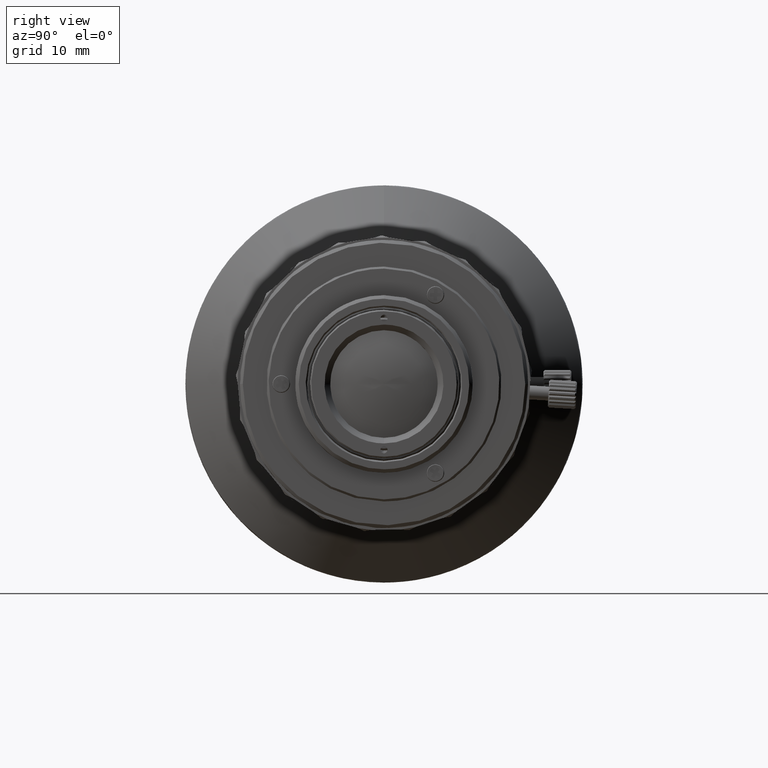
[diagram: clean part render]
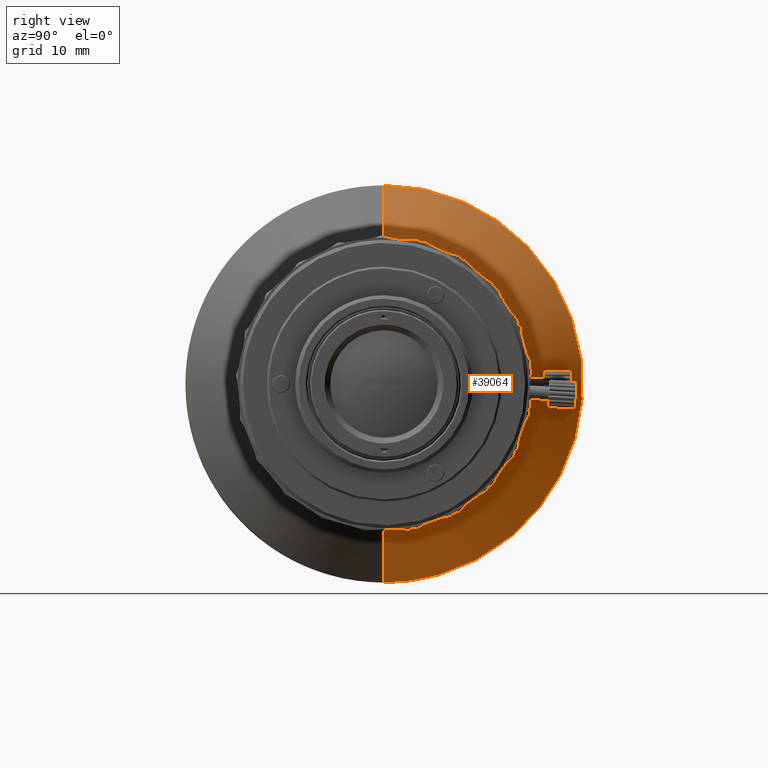
[diagram: same view with one face highlighted and labeled with its STEP entity id]
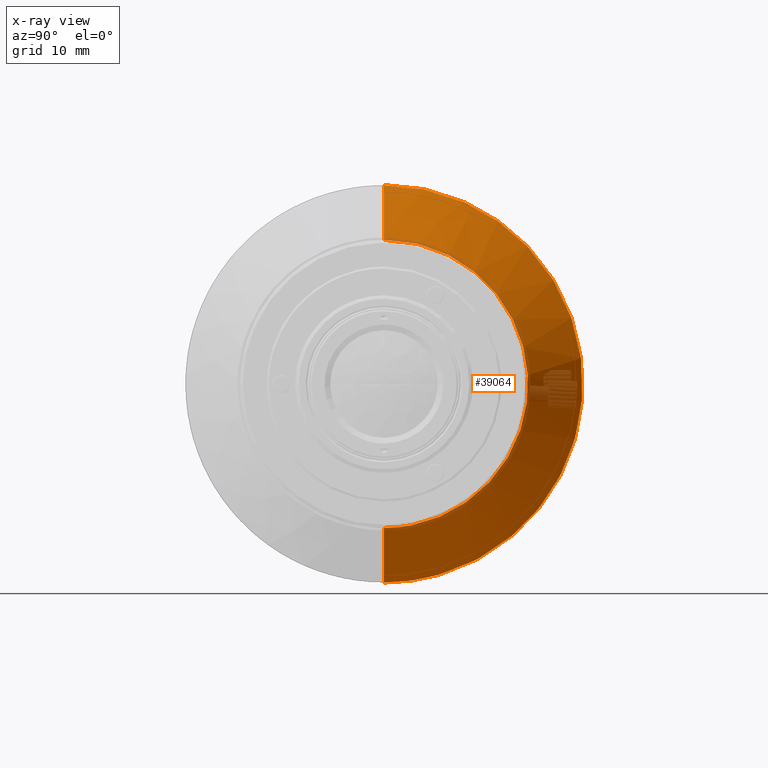
[diagram: x-ray of the same camera — body ghosted, the highlighted face saturated]
A machine part, right view. The second image highlights one B-rep face of the part: STEP entity #39064.
The next image is the same camera in x-ray: the body ghosted, the highlighted face saturated — about 10% of this face is hidden behind the body in this view.
In plain terms, the highlighted face is a freeform B-spline surface patch.
Its self-contained STEP definition (entity closure, byte-faithful):
#73 = ORIENTED_EDGE ( 'NONE', *, *, #53586, .T. ) ;
#680 =( BOUNDED_CURVE ( )  B_SPLINE_CURVE ( 3, ( #13813, #37632, #38005, #8320, #55996, #51191, #56277 ),
 .UNSPECIFIED., .F., .T. ) 
 B_SPLINE_CURVE_WITH_KNOTS ( ( 4, 3, 4 ),
 ( -3.141592653589795336, -1.570796326794897668, 0.000000000000000000 ),
 .UNSPECIFIED. ) 
 CURVE ( )  GEOMETRIC_REPRESENTATION_ITEM ( )  RATIONAL_B_SPLINE_CURVE ( ( 1.000000000000000000, 0.8047378540760217192, 0.8047378540760217192, 1.000000000000000000, 0.8047378540760217192, 0.8047378540760217192, 1.000000000000000000 ) ) 
 REPRESENTATION_ITEM ( '' )  );
#2497 =( BOUNDED_CURVE ( )  B_SPLINE_CURVE ( 3, ( #5810, #5041, #17536, #70330, #52724, #62602, #41374 ),
 .UNSPECIFIED., .F., .F. ) 
 B_SPLINE_CURVE_WITH_KNOTS ( ( 4, 3, 4 ),
 ( -3.141592653589795336, -1.570796326794897668, 0.000000000000000000 ),
 .UNSPECIFIED. ) 
 CURVE ( )  GEOMETRIC_REPRESENTATION_ITEM ( )  RATIONAL_B_SPLINE_CURVE ( ( 1.000000000000000000, 0.8047378540760217192, 0.8047378540760217192, 1.000000000000000000, 0.8047378540760217192, 0.8047378540760217192, 1.000000000000000000 ) ) 
 REPRESENTATION_ITEM ( '' )  );
#2793 = CARTESIAN_POINT ( 'NONE',  ( 5.540000000000000036, 16.63633481965970873, -28.40000000682434234 ) ) ;
#5041 = CARTESIAN_POINT ( 'NONE',  ( 12.08497712299999804, 12.06720061707666680, 20.59999999999999432 ) ) ;
#5810 = CARTESIAN_POINT ( 'NONE',  ( 12.08497712299999982, -1.849739597394179798E-09, 20.60000000000000142 ) ) ;
#8278 = CARTESIAN_POINT ( 'NONE',  ( 5.540000000000000036, 28.39999999658783381, -16.63633483713452321 ) ) ;
#8320 = CARTESIAN_POINT ( 'NONE',  ( 5.540000000000000036, 28.40000000000000213, -5.824931063768625184E-09 ) ) ;
#8326 = CARTESIAN_POINT ( 'NONE',  ( 12.08497712299999982, -8.450261254831648938E-09, -20.60000000000000142 ) ) ;
#8426 = ORIENTED_EDGE ( 'NONE', *, *, #74539, .T. ) ;
#9044 = CARTESIAN_POINT ( 'NONE',  ( 5.540000000000000036, -1.164987473967080945E-08, -28.40000000000000213 ) ) ;
#10229 = CARTESIAN_POINT ( 'NONE',  ( 12.08497712299999982, -1.849739597394179798E-09, 20.60000000000000142 ) ) ;
#13813 = CARTESIAN_POINT ( 'NONE',  ( 5.540000000000000036, -2.550126435242459979E-09, 28.40000000000000213 ) ) ;
#14145 = CARTESIAN_POINT ( 'NONE',  ( 5.540000000000000036, 28.40000000000000213, -5.824937369835404724E-09 ) ) ;
#14961 = VERTEX_POINT ( 'NONE', #47438 ) ;
#15526 = VERTEX_POINT ( 'NONE', #20515 ) ;
#17536 = CARTESIAN_POINT ( 'NONE',  ( 12.08497712300002114, 20.60000000247502072, 12.06720061285154166 ) ) ;
#20515 = CARTESIAN_POINT ( 'NONE',  ( 5.540000000000000036, -1.164987473967079952E-08, -28.40000000000000213 ) ) ;
#21572 = CARTESIAN_POINT ( 'NONE',  ( 5.540000000000000036, -2.550126435242459979E-09, 28.40000000000000213 ) ) ;
#22679 = VERTEX_POINT ( 'NONE', #43834 ) ;
#23454 = CARTESIAN_POINT ( 'NONE',  ( 12.08497712299999982, -8.450261254831648938E-09, -20.60000000000000142 ) ) ;
#26249 = CARTESIAN_POINT ( 'NONE',  ( 12.08497712299999804, 12.06720061707667213, 20.60000000000000142 ) ) ;
#26637 = CARTESIAN_POINT ( 'NONE',  ( 5.540000000000000036, 0.000000000000000000, 28.40000000000000213 ) ) ;
#28533 = ORIENTED_EDGE ( 'NONE', *, *, #36817, .T. ) ;
#32487 = CARTESIAN_POINT ( 'NONE',  ( 12.08497712299999804, 20.60000000247502072, 12.06720061285154166 ) ) ;
#36817 = EDGE_CURVE ( 'NONE', #22679, #69256, #2497, .T. ) ;
#37464 = ORIENTED_EDGE ( 'NONE', *, *, #42754, .F. ) ;
#37632 = CARTESIAN_POINT ( 'NONE',  ( 5.540000000000000924, 16.63633483130958268, 28.40000000000000213 ) ) ;
#38005 = CARTESIAN_POINT ( 'NONE',  ( 5.540000000000000924, 28.40000000341217401, 16.63633482548465281 ) ) ;
#38945 = B_SPLINE_CURVE_WITH_KNOTS ( 'NONE', 1,
 ( #21572, #10229 ),
 .UNSPECIFIED., .F., .F.,
 ( 2, 2 ),
 ( -1.000000000000000000, 0.000000000000000000 ),
 .UNSPECIFIED. ) ;
#39064 = ADVANCED_FACE ( 'NONE', ( #75533 ), #65999, .F. ) ;
#39111 = CARTESIAN_POINT ( 'NONE',  ( 5.540000000000000036, 16.63633483130958979, 28.40000000000000213 ) ) ;
#40069 = EDGE_LOOP ( 'NONE', ( #73, #37464, #8426, #28533 ) ) ;
#41374 = CARTESIAN_POINT ( 'NONE',  ( 12.08497712299999982, -8.450261254831648938E-09, -20.60000000000000142 ) ) ;
#42754 = EDGE_CURVE ( 'NONE', #14961, #15526, #680, .T. ) ;
#43834 = CARTESIAN_POINT ( 'NONE',  ( 12.08497712299999982, -1.849739597394179798E-09, 20.60000000000000142 ) ) ;
#43852 = CARTESIAN_POINT ( 'NONE',  ( 12.08497712299999804, 12.06720060862641475, -20.60000000495005423 ) ) ;
#44995 = CARTESIAN_POINT ( 'NONE',  ( 12.08497712299999982, -8.450261254831643974E-09, -20.60000000000000142 ) ) ;
#47438 = CARTESIAN_POINT ( 'NONE',  ( 5.540000000000000036, -2.550126435242459979E-09, 28.40000000000000213 ) ) ;
#51191 = CARTESIAN_POINT ( 'NONE',  ( 5.540000000000000924, 16.63633481965972294, -28.40000000682433168 ) ) ;
#52724 = CARTESIAN_POINT ( 'NONE',  ( 12.08497712300008509, 20.59999999752497857, -12.06720062130179549 ) ) ;
#53586 = EDGE_CURVE ( 'NONE', #69256, #15526, #76230, .T. ) ;
#55996 = CARTESIAN_POINT ( 'NONE',  ( 5.540000000000000924, 28.39999999658783381, -16.63633483713451255 ) ) ;
#56277 = CARTESIAN_POINT ( 'NONE',  ( 5.540000000000000036, -1.164987473967079952E-08, -28.40000000000000213 ) ) ;
#57482 = CARTESIAN_POINT ( 'NONE',  ( 12.08497712299999982, 20.60000000000000142, -4.225130627415821987E-09 ) ) ;
#61836 = CARTESIAN_POINT ( 'NONE',  ( 5.540000000000000036, 28.40000000341217401, 16.63633482548464926 ) ) ;
#62602 = CARTESIAN_POINT ( 'NONE',  ( 12.08497712300010285, 12.06720060862641652, -20.60000000495004002 ) ) ;
#65275 = CARTESIAN_POINT ( 'NONE',  ( 5.540000000000000036, -1.164987473967079952E-08, -28.40000000000000213 ) ) ;
#65999 =( BOUNDED_SURFACE ( )  B_SPLINE_SURFACE ( 1, 3, ( 
 ( #74757, #26249, #32487, #57482, #68091, #43852, #44995 ),
 ( #26637, #39111, #61836, #14145, #8278, #2793, #9044 ) ),
 .UNSPECIFIED., .F., .F., .T. ) 
 B_SPLINE_SURFACE_WITH_KNOTS ( ( 2, 2 ),
 ( 4, 3, 4 ),
 ( 1.121391017659709899E-16, 1.000000000000000000 ),
 ( 0.000000000000000000, 0.5000000000000000000, 1.000000000000000000 ),
 .UNSPECIFIED. ) 
 GEOMETRIC_REPRESENTATION_ITEM ( )  RATIONAL_B_SPLINE_SURFACE ( (
 ( 1.000000000000000000, 0.8047378540760217192, 0.8047378540760217192, 1.000000000000000000, 0.8047378540760217192, 0.8047378540760217192, 1.000000000000000000),
 ( 1.000000000000000000, 0.8047378540760217192, 0.8047378540760217192, 1.000000000000000000, 0.8047378540760217192, 0.8047378540760217192, 1.000000000000000000) ) ) 
 REPRESENTATION_ITEM ( '' )  SURFACE ( )  );
#68091 = CARTESIAN_POINT ( 'NONE',  ( 12.08497712299999804, 20.59999999752497857, -12.06720062130180438 ) ) ;
#69256 = VERTEX_POINT ( 'NONE', #8326 ) ;
#70330 = CARTESIAN_POINT ( 'NONE',  ( 12.08497712300005134, 20.59999999999999787, -4.225126053296959374E-09 ) ) ;
#74539 = EDGE_CURVE ( 'NONE', #14961, #22679, #38945, .T. ) ;
#74757 = CARTESIAN_POINT ( 'NONE',  ( 12.08497712299999982, 0.000000000000000000, 20.60000000000000142 ) ) ;
#75533 = FACE_OUTER_BOUND ( 'NONE', #40069, .T. ) ;
#76230 = B_SPLINE_CURVE_WITH_KNOTS ( 'NONE', 1,
 ( #23454, #65275 ),
 .UNSPECIFIED., .F., .F.,
 ( 2, 2 ),
 ( -1.000000000000000000, 0.000000000000000000 ),
 .UNSPECIFIED. ) ;